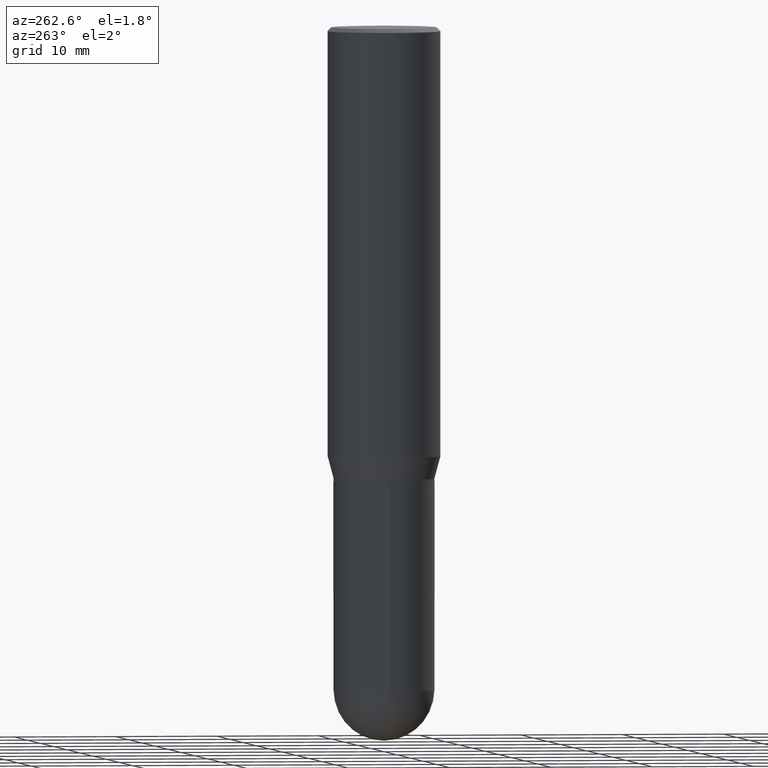
[diagram: clean part render]
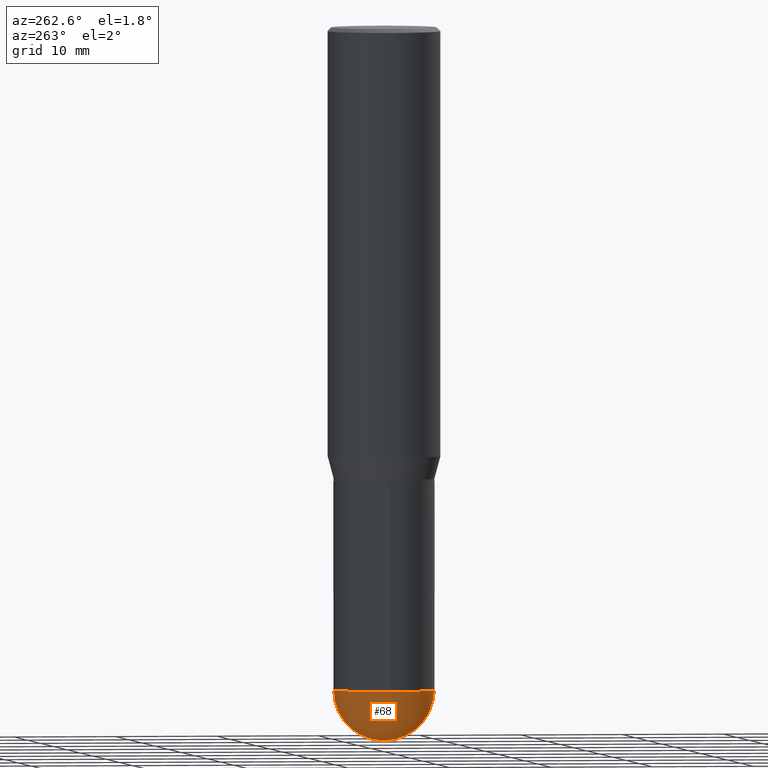
[diagram: same view with one face highlighted and labeled with its STEP entity id]
A machine part, auxiliary view. The second image highlights one B-rep face of the part: STEP entity #68.
In plain terms, the highlighted spherical surface has radius 4.9606 mm.
Its self-contained STEP definition (entity closure, byte-faithful):
#1 = ORIENTED_EDGE ( 'NONE', *, *, #417, .F. ) ;
#8 = CARTESIAN_POINT ( 'NONE',  ( -1.387689962939413353E-15, -0.1953000000000089664, -2.554699999999999527 ) ) ;
#13 = AXIS2_PLACEMENT_3D ( 'NONE', #256, #330, #334 ) ;
#37 = DIRECTION ( 'NONE',  ( -1.000000000000000000, 7.105427357601001070E-15, -4.926315508542082329E-29 ) ) ;
#52 = VERTEX_POINT ( 'NONE', #384 ) ;
#68 = ADVANCED_FACE ( 'NONE', ( #427 ), #503, .T. ) ;
#82 = AXIS2_PLACEMENT_3D ( 'NONE', #169, #37, #482 ) ;
#83 = CIRCLE ( 'NONE', #314, 0.1953000000000000569 ) ;
#106 = CIRCLE ( 'NONE', #82, 0.1953000000000000291 ) ;
#116 = VERTEX_POINT ( 'NONE', #8 ) ;
#138 = DIRECTION ( 'NONE',  ( 1.000000000000000000, -6.982962677686265922E-15, 4.883557194083112340E-29 ) ) ;
#145 = EDGE_CURVE ( 'NONE', #52, #116, #106, .T. ) ;
#151 = VERTEX_POINT ( 'NONE', #282 ) ;
#169 = CARTESIAN_POINT ( 'NONE',  ( 6.252116918762979989E-29, -8.912988558351247541E-15, -2.554699999999999971 ) ) ;
#170 = CARTESIAN_POINT ( 'NONE',  ( -0.1953000000000000569, -6.127199896719566760E-15, -2.554699999999999971 ) ) ;
#174 = CIRCLE ( 'NONE', #364, 0.1953000000000000291 ) ;
#175 = CARTESIAN_POINT ( 'NONE',  ( 6.252116918762979989E-29, -8.912988558351247541E-15, -2.554699999999999971 ) ) ;
#223 = DIRECTION ( 'NONE',  ( 1.000000000000000000, -6.982962677686266711E-15, 0.000000000000000000 ) ) ;
#247 = DIRECTION ( 'NONE',  ( 6.982962677686266711E-15, 1.000000000000000000, -2.797591391361252376E-15 ) ) ;
#256 = CARTESIAN_POINT ( 'NONE',  ( 6.247439159161168638E-29, -8.919687376342582955E-15, -2.554699999999999971 ) ) ;
#282 = CARTESIAN_POINT ( 'NONE',  ( 1.363772610952190606E-15, 0.1952999999999911473, -2.554700000000000415 ) ) ;
#286 = AXIS2_PLACEMENT_3D ( 'NONE', #308, #322, #247 ) ;
#291 = DIRECTION ( 'NONE',  ( 6.982962677686266711E-15, 1.000000000000000000, 0.000000000000000000 ) ) ;
#300 = EDGE_CURVE ( 'NONE', #318, #116, #387, .T. ) ;
#301 = ORIENTED_EDGE ( 'NONE', *, *, #145, .T. ) ;
#308 = CARTESIAN_POINT ( 'NONE',  ( 6.252116918762979989E-29, -8.912988558351247541E-15, -2.554699999999999971 ) ) ;
#314 = AXIS2_PLACEMENT_3D ( 'NONE', #455, #502, #223 ) ;
#318 = VERTEX_POINT ( 'NONE', #170 ) ;
#322 = DIRECTION ( 'NONE',  ( -1.000000000000000000, 6.982962677686266711E-15, -4.883557194083112901E-29 ) ) ;
#330 = DIRECTION ( 'NONE',  ( -2.445468806185136597E-29, 3.491481338843145583E-15, 1.000000000000000000 ) ) ;
#334 = DIRECTION ( 'NONE',  ( 1.000000000000000000, -6.982962677686266711E-15, 0.000000000000000000 ) ) ;
#364 = AXIS2_PLACEMENT_3D ( 'NONE', #175, #138, #291 ) ;
#376 = EDGE_LOOP ( 'NONE', ( #466, #301, #420, #1 ) ) ;
#384 = CARTESIAN_POINT ( 'NONE',  ( 6.738067675424772833E-29, -9.582916187833640258E-15, -2.750000000000000000 ) ) ;
#387 = CIRCLE ( 'NONE', #13, 0.1953000000000000569 ) ;
#395 = EDGE_CURVE ( 'NONE', #52, #151, #174, .T. ) ;
#417 = EDGE_CURVE ( 'NONE', #151, #318, #83, .T. ) ;
#420 = ORIENTED_EDGE ( 'NONE', *, *, #300, .F. ) ;
#427 = FACE_OUTER_BOUND ( 'NONE', #376, .T. ) ;
#455 = CARTESIAN_POINT ( 'NONE',  ( 6.247439159161168638E-29, -8.919687376342582955E-15, -2.554699999999999971 ) ) ;
#466 = ORIENTED_EDGE ( 'NONE', *, *, #395, .F. ) ;
#482 = DIRECTION ( 'NONE',  ( -7.105427357601001070E-15, -1.000000000000000000, 0.000000000000000000 ) ) ;
#502 = DIRECTION ( 'NONE',  ( -2.445468806185136597E-29, 3.491481338843145583E-15, 1.000000000000000000 ) ) ;
#503 = SPHERICAL_SURFACE ( 'NONE', #286, 0.1953000000000000291 ) ;